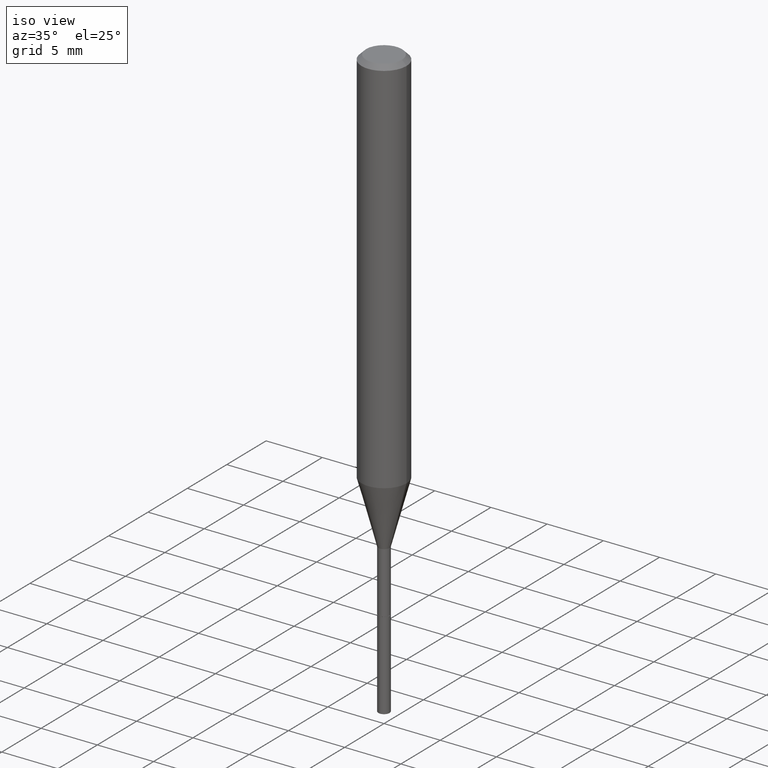
[diagram: clean part render]
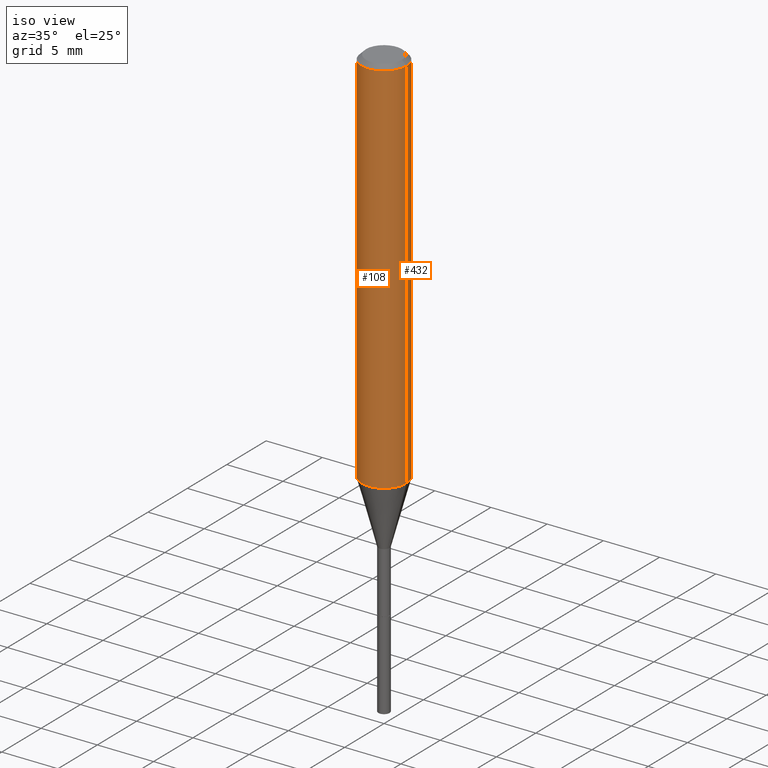
[diagram: same view with one multi-face feature highlighted, each face labeled with its STEP entity id]
A machine part, iso view. The highlighted faces form ONE feature: a constant-radius fillet chain: 2 tangent blend faces with common blend radius 2.0003 mm. The faces share edges in the B-rep.
Their STEP definitions:
[1] entity #108 (Cylinder):
#1 = VERTEX_POINT ( 'NONE', #255 ) ;
#9 = AXIS2_PLACEMENT_3D ( 'NONE', #178, #222, #419 ) ;
#13 = VERTEX_POINT ( 'NONE', #350 ) ;
#23 = LINE ( 'NONE', #165, #473 ) ;
#26 = DIRECTION ( 'NONE',  ( -2.445468806185136597E-29, 3.491481338843145583E-15, 1.000000000000000000 ) ) ;
#31 = ORIENTED_EDGE ( 'NONE', *, *, #235, .F. ) ;
#34 = AXIS2_PLACEMENT_3D ( 'NONE', #330, #443, #293 ) ;
#85 = AXIS2_PLACEMENT_3D ( 'NONE', #371, #26, #261 ) ;
#108 = ADVANCED_FACE ( 'NONE', ( #318 ), #338, .T. ) ;
#113 = CARTESIAN_POINT ( 'NONE',  ( 0.07875000000000008382, -5.499083108677941345E-16, 3.839989210939303220E-30 ) ) ;
#140 = ORIENTED_EDGE ( 'NONE', *, *, #345, .F. ) ;
#146 = LINE ( 'NONE', #113, #257 ) ;
#149 = VERTEX_POINT ( 'NONE', #202 ) ;
#151 = EDGE_LOOP ( 'NONE', ( #31, #456, #461, #140 ) ) ;
#165 = CARTESIAN_POINT ( 'NONE',  ( -0.07875000000000008382, 5.595524044110794920E-16, -3.873661383575742696E-30 ) ) ;
#178 = CARTESIAN_POINT ( 'NONE',  ( 3.851613369741614799E-31, -5.499083108677989540E-17, -0.01575000000000010072 ) ) ;
#180 = CIRCLE ( 'NONE', #9, 0.07875000000000001443 ) ;
#202 = CARTESIAN_POINT ( 'NONE',  ( 0.07875000000000015321, -5.217049625028709714E-15, -1.336722399813057072 ) ) ;
#220 = CARTESIAN_POINT ( 'NONE',  ( -0.07875000000000015321, -4.107588909749834411E-15, -1.336722399813057072 ) ) ;
#222 = DIRECTION ( 'NONE',  ( -2.445468806185136597E-29, 3.491481338843145583E-15, 1.000000000000000000 ) ) ;
#235 = EDGE_CURVE ( 'NONE', #430, #13, #23, .T. ) ;
#255 = CARTESIAN_POINT ( 'NONE',  ( 0.07875000000000001443, -6.048991419545734691E-16, -0.01575000000000010072 ) ) ;
#257 = VECTOR ( 'NONE', #378, 39.37007874015748143 ) ;
#261 = DIRECTION ( 'NONE',  ( 1.000000000000000000, -6.982962677686272233E-15, 0.000000000000000000 ) ) ;
#276 = EDGE_CURVE ( 'NONE', #430, #149, #425, .T. ) ;
#293 = DIRECTION ( 'NONE',  ( 1.000000000000000000, -6.982962677686267499E-15, 4.876176775795935232E-29 ) ) ;
#318 = FACE_OUTER_BOUND ( 'NONE', #151, .T. ) ;
#330 = CARTESIAN_POINT ( 'NONE',  ( 0.000000000000000000, 0.000000000000000000, 0.000000000000000000 ) ) ;
#338 = CYLINDRICAL_SURFACE ( 'NONE', #34, 0.07875000000000008382 ) ;
#345 = EDGE_CURVE ( 'NONE', #13, #1, #180, .T. ) ;
#350 = CARTESIAN_POINT ( 'NONE',  ( -0.07875000000000001443, -1.801513668212767078E-15, -0.01575000000000010072 ) ) ;
#371 = CARTESIAN_POINT ( 'NONE',  ( 3.268912931271767659E-29, -4.667141314160914791E-15, -1.336722399813057072 ) ) ;
#378 = DIRECTION ( 'NONE',  ( -2.445468806185136877E-29, 3.491481338843145188E-15, 1.000000000000000000 ) ) ;
#379 = EDGE_CURVE ( 'NONE', #149, #1, #146, .T. ) ;
#419 = DIRECTION ( 'NONE',  ( 1.000000000000000000, -6.982962677686267499E-15, 0.000000000000000000 ) ) ;
#425 = CIRCLE ( 'NONE', #85, 0.07875000000000015321 ) ;
#430 = VERTEX_POINT ( 'NONE', #220 ) ;
#443 = DIRECTION ( 'NONE',  ( -2.445468806185136597E-29, 3.491481338843145583E-15, 1.000000000000000000 ) ) ;
#456 = ORIENTED_EDGE ( 'NONE', *, *, #276, .T. ) ;
#461 = ORIENTED_EDGE ( 'NONE', *, *, #379, .T. ) ;
#473 = VECTOR ( 'NONE', #474, 39.37007874015748143 ) ;
#474 = DIRECTION ( 'NONE',  ( -2.445468806185136877E-29, 3.491481338843145188E-15, 1.000000000000000000 ) ) ;
[2] entity #432 (Cylinder):
#1 = VERTEX_POINT ( 'NONE', #255 ) ;
#2 = DIRECTION ( 'NONE',  ( 1.000000000000000000, -6.982962677686267499E-15, 4.876176775795935232E-29 ) ) ;
#13 = VERTEX_POINT ( 'NONE', #350 ) ;
#23 = LINE ( 'NONE', #165, #473 ) ;
#29 = DIRECTION ( 'NONE',  ( 1.000000000000000000, -6.982962677686267499E-15, 0.000000000000000000 ) ) ;
#72 = FACE_OUTER_BOUND ( 'NONE', #358, .T. ) ;
#110 = CARTESIAN_POINT ( 'NONE',  ( 3.268912931271767659E-29, -4.667141314160914791E-15, -1.336722399813057072 ) ) ;
#113 = CARTESIAN_POINT ( 'NONE',  ( 0.07875000000000008382, -5.499083108677941345E-16, 3.839989210939303220E-30 ) ) ;
#119 = ORIENTED_EDGE ( 'NONE', *, *, #139, .F. ) ;
#137 = CIRCLE ( 'NONE', #327, 0.07875000000000001443 ) ;
#139 = EDGE_CURVE ( 'NONE', #1, #13, #137, .T. ) ;
#141 = CYLINDRICAL_SURFACE ( 'NONE', #364, 0.07875000000000008382 ) ;
#146 = LINE ( 'NONE', #113, #257 ) ;
#149 = VERTEX_POINT ( 'NONE', #202 ) ;
#165 = CARTESIAN_POINT ( 'NONE',  ( -0.07875000000000008382, 5.595524044110794920E-16, -3.873661383575742696E-30 ) ) ;
#202 = CARTESIAN_POINT ( 'NONE',  ( 0.07875000000000015321, -5.217049625028709714E-15, -1.336722399813057072 ) ) ;
#208 = DIRECTION ( 'NONE',  ( -2.445468806185136597E-29, 3.491481338843145583E-15, 1.000000000000000000 ) ) ;
#220 = CARTESIAN_POINT ( 'NONE',  ( -0.07875000000000015321, -4.107588909749834411E-15, -1.336722399813057072 ) ) ;
#233 = DIRECTION ( 'NONE',  ( 1.000000000000000000, -6.982962677686272233E-15, 0.000000000000000000 ) ) ;
#234 = AXIS2_PLACEMENT_3D ( 'NONE', #110, #258, #233 ) ;
#235 = EDGE_CURVE ( 'NONE', #430, #13, #23, .T. ) ;
#255 = CARTESIAN_POINT ( 'NONE',  ( 0.07875000000000001443, -6.048991419545734691E-16, -0.01575000000000010072 ) ) ;
#257 = VECTOR ( 'NONE', #378, 39.37007874015748143 ) ;
#258 = DIRECTION ( 'NONE',  ( -2.445468806185136597E-29, 3.491481338843145583E-15, 1.000000000000000000 ) ) ;
#262 = CARTESIAN_POINT ( 'NONE',  ( 0.000000000000000000, 0.000000000000000000, 0.000000000000000000 ) ) ;
#280 = ORIENTED_EDGE ( 'NONE', *, *, #235, .T. ) ;
#304 = ORIENTED_EDGE ( 'NONE', *, *, #420, .T. ) ;
#327 = AXIS2_PLACEMENT_3D ( 'NONE', #374, #208, #29 ) ;
#350 = CARTESIAN_POINT ( 'NONE',  ( -0.07875000000000001443, -1.801513668212767078E-15, -0.01575000000000010072 ) ) ;
#358 = EDGE_LOOP ( 'NONE', ( #304, #280, #119, #428 ) ) ;
#364 = AXIS2_PLACEMENT_3D ( 'NONE', #262, #385, #2 ) ;
#374 = CARTESIAN_POINT ( 'NONE',  ( 3.851613369741614799E-31, -5.499083108677989540E-17, -0.01575000000000010072 ) ) ;
#378 = DIRECTION ( 'NONE',  ( -2.445468806185136877E-29, 3.491481338843145188E-15, 1.000000000000000000 ) ) ;
#379 = EDGE_CURVE ( 'NONE', #149, #1, #146, .T. ) ;
#385 = DIRECTION ( 'NONE',  ( -2.445468806185136597E-29, 3.491481338843145583E-15, 1.000000000000000000 ) ) ;
#420 = EDGE_CURVE ( 'NONE', #149, #430, #448, .T. ) ;
#428 = ORIENTED_EDGE ( 'NONE', *, *, #379, .F. ) ;
#430 = VERTEX_POINT ( 'NONE', #220 ) ;
#432 = ADVANCED_FACE ( 'NONE', ( #72 ), #141, .T. ) ;
#448 = CIRCLE ( 'NONE', #234, 0.07875000000000015321 ) ;
#473 = VECTOR ( 'NONE', #474, 39.37007874015748143 ) ;
#474 = DIRECTION ( 'NONE',  ( -2.445468806185136877E-29, 3.491481338843145188E-15, 1.000000000000000000 ) ) ;